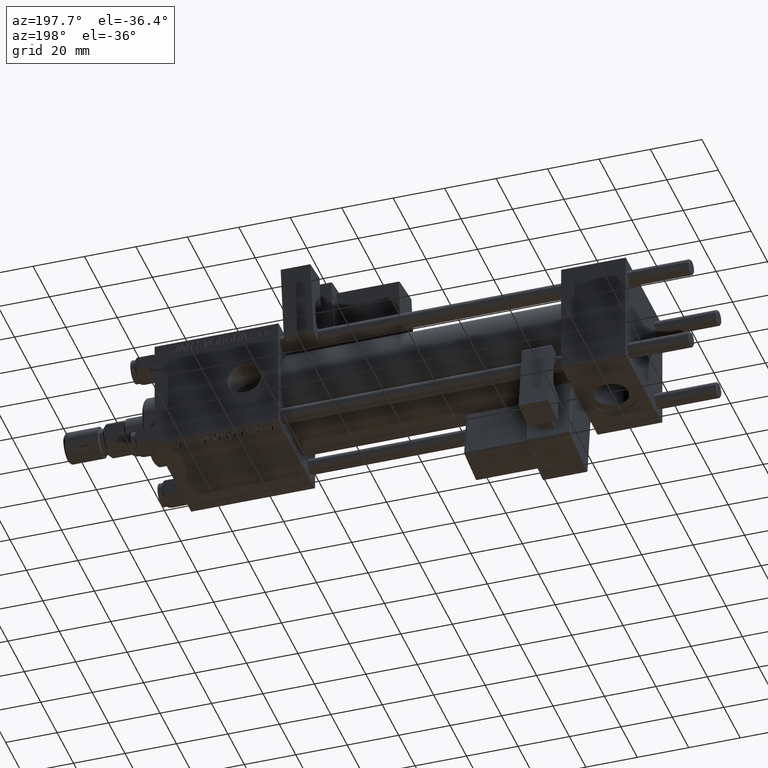
[diagram: clean part render]
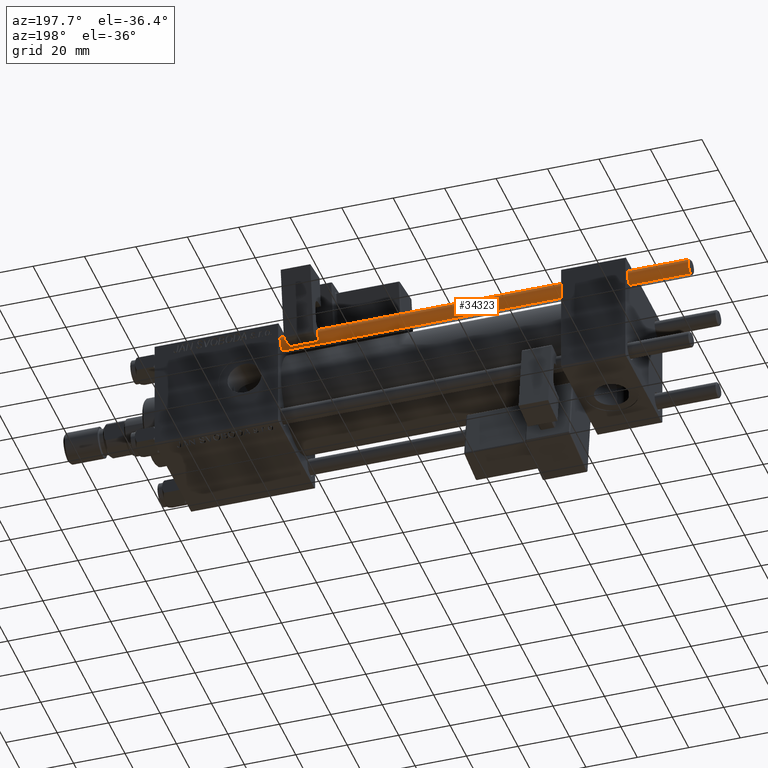
[diagram: same view with one face highlighted and labeled with its STEP entity id]
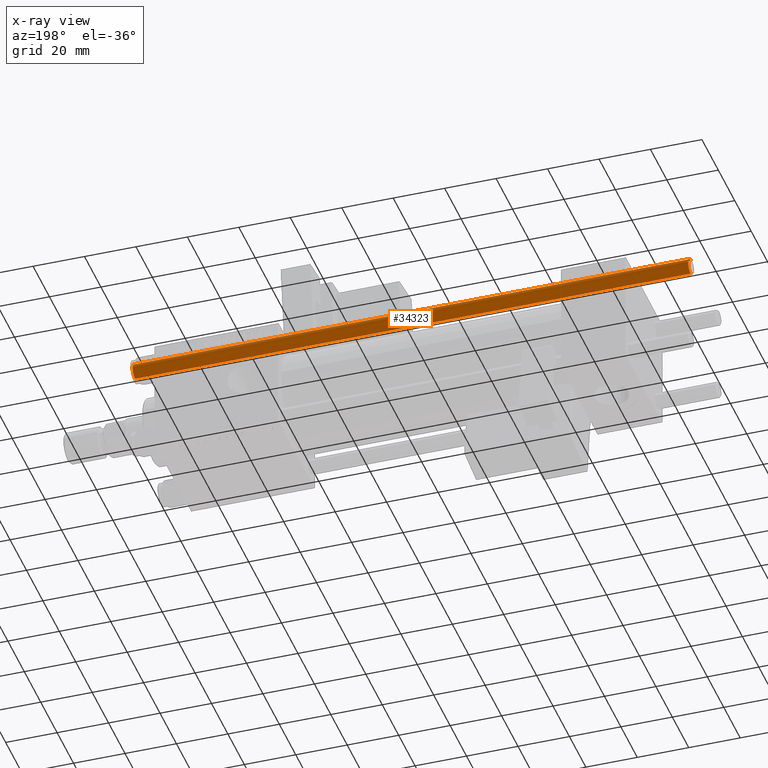
[diagram: x-ray of the same camera — body ghosted, the highlighted face saturated]
A machine part, auxiliary view. The second image highlights one B-rep face of the part: STEP entity #34323.
The next image is the same camera in x-ray: the body ghosted, the highlighted face saturated — about 0% of this face is hidden behind the body in this view.
In plain terms, the highlighted cylindrical surface (edge-blend (fillet) strip) has radius 3 mm, axis along (-1, -0, -0).
Its self-contained STEP definition (entity closure, byte-faithful):
#2560 = DIRECTION ( 'NONE',  ( -0.000000000000000000, -0.000000000000000000, -1.000000000000000000 ) ) ;
#5522 = EDGE_CURVE ( 'NONE', #10343, #44677, #41270, .T. ) ;
#5624 = DIRECTION ( 'NONE',  ( 0.000000000000000000, 0.000000000000000000, -1.000000000000000000 ) ) ;
#10343 = VERTEX_POINT ( 'NONE', #53877 ) ;
#10614 = DIRECTION ( 'NONE',  ( -0.000000000000000000, -0.000000000000000000, -1.000000000000000000 ) ) ;
#13490 = EDGE_CURVE ( 'NONE', #21898, #44677, #53116, .T. ) ;
#13871 = CARTESIAN_POINT ( 'NONE',  ( 0.000000000000000000, 0.000000000000000000, 216.5000000000000000 ) ) ;
#16407 = DIRECTION ( 'NONE',  ( -0.000000000000000000, -0.000000000000000000, -1.000000000000000000 ) ) ;
#16542 = AXIS2_PLACEMENT_3D ( 'NONE', #13871, #5624, #46298 ) ;
#16674 = CYLINDRICAL_SURFACE ( 'NONE', #30090, 3.000000000000000444 ) ;
#16935 = FACE_OUTER_BOUND ( 'NONE', #17634, .T. ) ;
#17105 = ORIENTED_EDGE ( 'NONE', *, *, #34630, .T. ) ;
#17634 = EDGE_LOOP ( 'NONE', ( #45905, #17105, #27165, #51713 ) ) ;
#17762 = DIRECTION ( 'NONE',  ( -0.000000000000000000, -0.000000000000000000, 1.000000000000000000 ) ) ;
#20521 = AXIS2_PLACEMENT_3D ( 'NONE', #26820, #17762, #26002 ) ;
#21898 = VERTEX_POINT ( 'NONE', #38941 ) ;
#23967 = CARTESIAN_POINT ( 'NONE',  ( -3.000000000000000444, 0.000000000000000000, 217.0000000000000000 ) ) ;
#26002 = DIRECTION ( 'NONE',  ( 1.000000000000000000, 0.000000000000000000, 0.000000000000000000 ) ) ;
#26659 = VECTOR ( 'NONE', #2560, 1000.000000000000000 ) ;
#26820 = CARTESIAN_POINT ( 'NONE',  ( 0.000000000000000000, 0.000000000000000000, 0.5000000000000559552 ) ) ;
#27165 = ORIENTED_EDGE ( 'NONE', *, *, #5522, .T. ) ;
#27364 = LINE ( 'NONE', #36714, #35368 ) ;
#29025 = CARTESIAN_POINT ( 'NONE',  ( 0.000000000000000000, 0.000000000000000000, 217.0000000000000000 ) ) ;
#30090 = AXIS2_PLACEMENT_3D ( 'NONE', #29025, #16407, #46327 ) ;
#30290 = EDGE_CURVE ( 'NONE', #21898, #45647, #44640, .T. ) ;
#34323 = ADVANCED_FACE ( 'NONE', ( #16935 ), #16674, .T. ) ;
#34630 = EDGE_CURVE ( 'NONE', #45647, #10343, #27364, .T. ) ;
#35368 = VECTOR ( 'NONE', #10614, 1000.000000000000000 ) ;
#36168 = CARTESIAN_POINT ( 'NONE',  ( -3.000000000000000444, 0.000000000000000000, 0.5000000000000559552 ) ) ;
#36714 = CARTESIAN_POINT ( 'NONE',  ( 3.000000000000000444, 3.673940397442060361E-16, 217.0000000000000000 ) ) ;
#38941 = CARTESIAN_POINT ( 'NONE',  ( -3.000000000000000444, 0.000000000000000000, 216.5000000000000000 ) ) ;
#41270 = CIRCLE ( 'NONE', #20521, 3.000000000000000444 ) ;
#42574 = CARTESIAN_POINT ( 'NONE',  ( 3.000000000000000444, 3.673940397442060361E-16, 216.5000000000000000 ) ) ;
#44640 = CIRCLE ( 'NONE', #16542, 3.000000000000000444 ) ;
#44677 = VERTEX_POINT ( 'NONE', #36168 ) ;
#45647 = VERTEX_POINT ( 'NONE', #42574 ) ;
#45905 = ORIENTED_EDGE ( 'NONE', *, *, #30290, .T. ) ;
#46298 = DIRECTION ( 'NONE',  ( 1.000000000000000000, 0.000000000000000000, 0.000000000000000000 ) ) ;
#46327 = DIRECTION ( 'NONE',  ( -1.000000000000000000, 0.000000000000000000, 0.000000000000000000 ) ) ;
#51713 = ORIENTED_EDGE ( 'NONE', *, *, #13490, .F. ) ;
#53116 = LINE ( 'NONE', #23967, #26659 ) ;
#53877 = CARTESIAN_POINT ( 'NONE',  ( 3.000000000000000444, 3.673940397442060361E-16, 0.5000000000000559552 ) ) ;